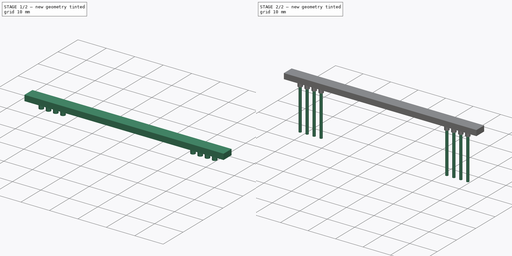
[diagram: build sequence overview — one tinted view per stage of 2, left to right]
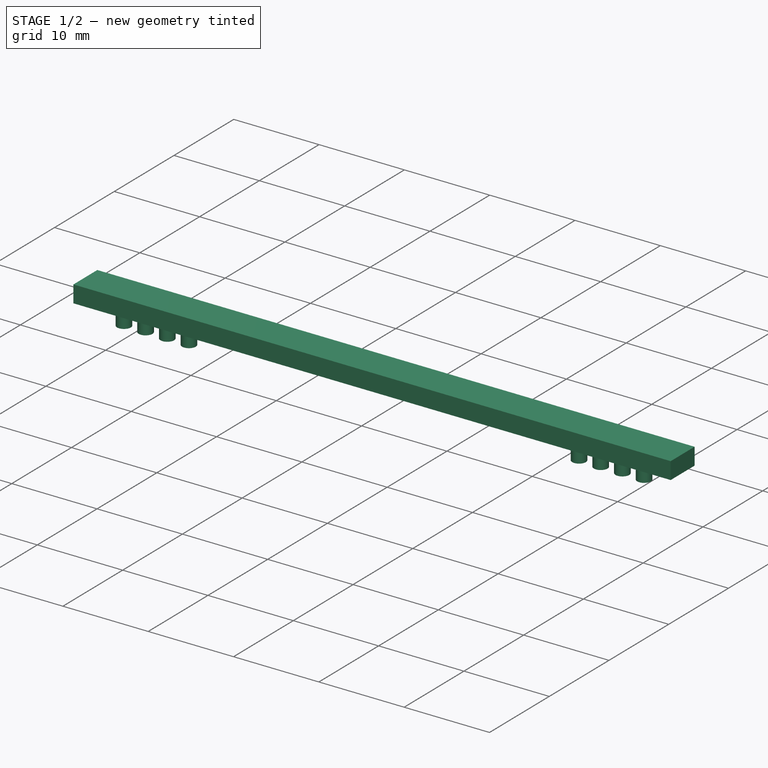
[diagram: stage 1 of 2 — iso view after this stage's code; geometry added in this stage tinted green]
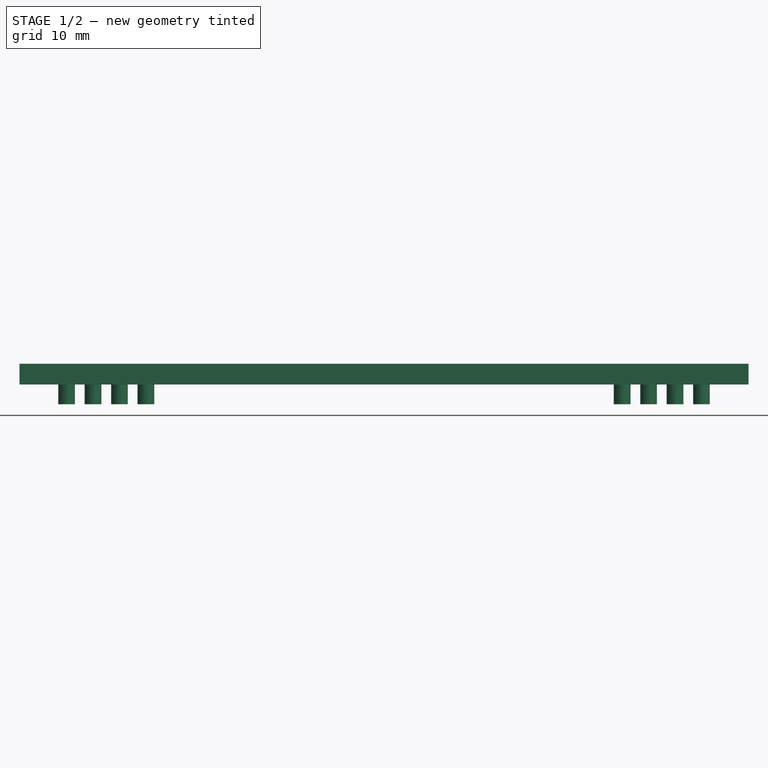
[diagram: stage 1 of 2 — front view after this stage's code; geometry added in this stage tinted green]
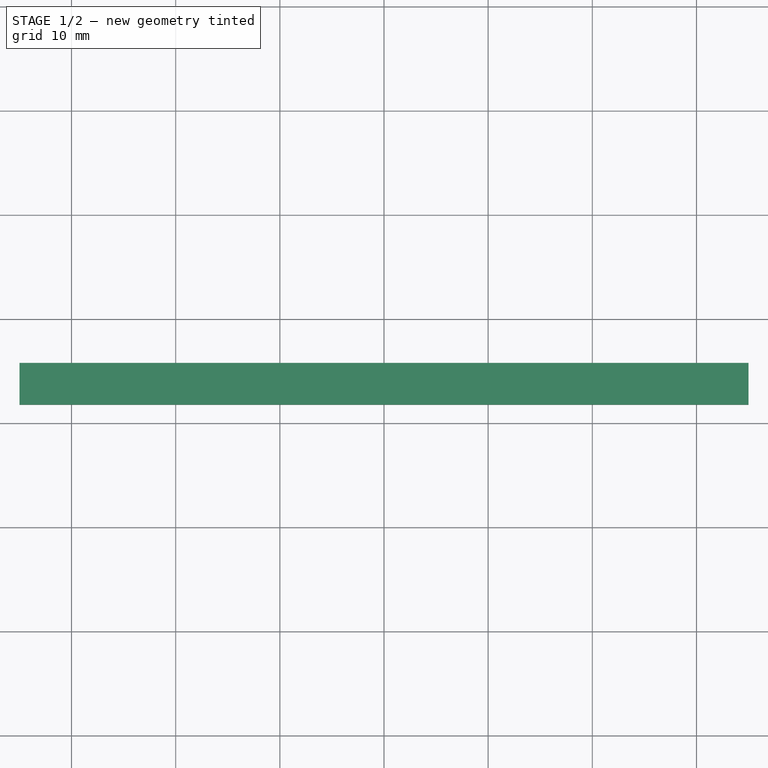
[diagram: stage 1 of 2 — top view after this stage's code; geometry added in this stage tinted green]
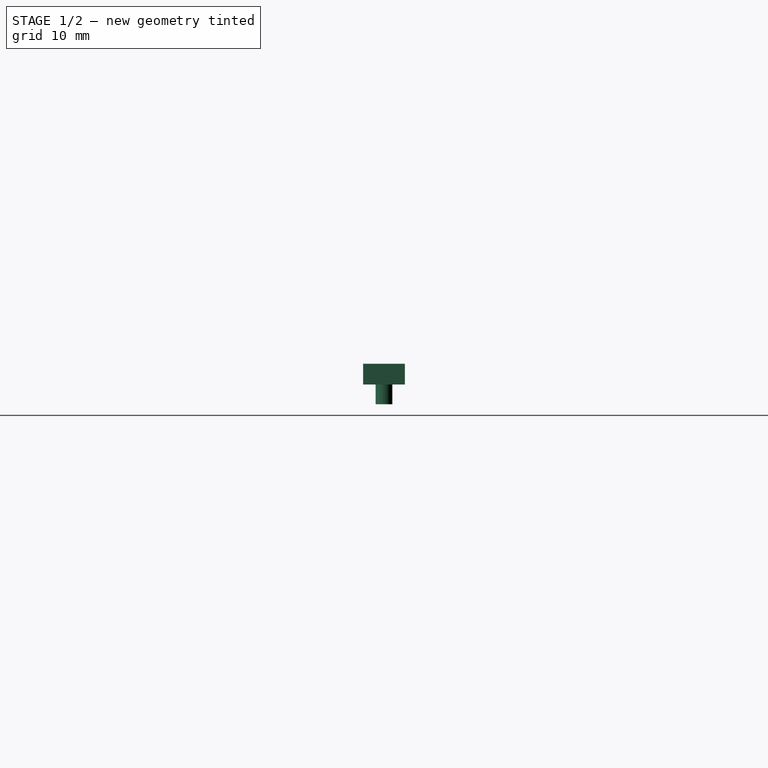
[diagram: stage 1 of 2 — right view after this stage's code; geometry added in this stage tinted green]
FCSTD DOCUMENT  (FreeCAD 0.18R15969 (Git))
Label: feature_pogo_hole
License: All rights reserved
LicenseURL: http://en.wikipedia.org/wiki/All_rights_reserved
objects: Sketcher::SketchObject×3, PartDesign::Pad×3, PartDesign::Chamfer×1, PartDesign::Body×1
note: 11 computed .brp shape members not serialized (recipe doc carries the construction recipe); baked Part::Feature solids carry a one-line shape summary decoded from their .brp

FEATURE [Sketcher::SketchObject] Sketch
  MapMode = 5
  Support = -> [XY_Plane]
  sketch-geometry (7):
    g0: LineSegment StartX=-35 StartY=-4.25 StartZ=0 EndX=35 EndY=-4.25 EndZ=0
    g1: LineSegment StartX=35 StartY=-4.25 StartZ=0 EndX=35 EndY=-8.25 EndZ=0
    g2: LineSegment StartX=35 StartY=-8.25 StartZ=0 EndX=-35 EndY=-8.25 EndZ=0
    g3: LineSegment StartX=-35 StartY=-8.25 StartZ=0 EndX=-35 EndY=-4.25 EndZ=0
    g4: LineSegment [constr] StartX=-35 StartY=-4.25 StartZ=0 EndX=0 EndY=-6.25 EndZ=0
    g5: LineSegment [constr] StartX=0 StartY=-6.25 StartZ=0 EndX=35 EndY=-4.25 EndZ=0
    g6: LineSegment [constr] StartX=0 StartY=-6.25 StartZ=0 EndX=-35 EndY=-8.25 EndZ=0
  constraints (19):
    c: Coincident(g0,g1)
    c: Coincident(g1,g2)
    c: Coincident(g2,g3)
    c: Coincident(g3,g0)
    c: Horizontal(g0)
    c: Horizontal(g2)
    c: Vertical(g1)
    c: Vertical(g3)
    c: Coincident(g0,g4)
    c: PointOnObject(g4,g-2)
    c: Coincident(g4,g5)
    c: Coincident(g5,g0)
    c: Coincident(g4,g6)
    c: Coincident(g6,g2)
    c: Equal(g6,g4)
    c: Equal(g4,g5)
    c: DistanceY(g4,g-1) = 6.25
    c: DistanceX(g0,g0) = 70
    c: DistanceY(g3,g3) = 4
FEATURE [PartDesign::Pad] Pad
  Length = 2
  Length2 = 100
  Profile = -> Sketch
  Type = 0
FEATURE [Sketcher::SketchObject] Sketch001
  MapMode = 5
  Placement = pos=(0,0,0) rot=(1,0,0;3.14159rad)
  Support = -> [Pad]
  expr: Constraints[37] = 1.5 + 0.1
  sketch-geometry (18):
    g0: Circle CenterX=-30.48 CenterY=6.25 CenterZ=0 NormalX=0 NormalY=0 NormalZ=1 AngleXU=0 Radius=0.8
    g1: LineSegment [constr] StartX=-30.48 StartY=6.25 StartZ=0 EndX=-27.94 EndY=6.25 EndZ=0
    g2: LineSegment [constr] StartX=-27.94 StartY=6.25 StartZ=0 EndX=-25.4 EndY=6.25 EndZ=0
    g3: LineSegment [constr] StartX=-25.4 StartY=6.25 StartZ=0 EndX=-22.86 EndY=6.25 EndZ=0
    g4: LineSegment [constr] StartX=22.86 StartY=6.25 StartZ=0 EndX=25.4 EndY=6.25 EndZ=0
    g5: LineSegment [constr] StartX=25.4 StartY=6.25 StartZ=0 EndX=27.94 EndY=6.25 EndZ=0
    g6: LineSegment [constr] StartX=27.94 StartY=6.25 StartZ=0 EndX=30.48 EndY=6.25 EndZ=0
    g7: LineSegment [constr] StartX=-27.94 StartY=6.25 StartZ=0 EndX=-26.67 EndY=0 EndZ=0
    g8: LineSegment [constr] StartX=-26.67 StartY=0 StartZ=0 EndX=-25.4 EndY=6.25 EndZ=0
    g9: LineSegment [constr] StartX=25.4 StartY=6.25 StartZ=0 EndX=26.67 EndY=0 EndZ=0
    g10: LineSegment [constr] StartX=26.67 StartY=0 StartZ=0 EndX=27.94 EndY=6.25 EndZ=0
    g11: Circle CenterX=-22.86 CenterY=6.25 CenterZ=0 NormalX=0 NormalY=0 NormalZ=1 AngleXU=0 Radius=0.8
    g12: Circle CenterX=-25.4 CenterY=6.25 CenterZ=0 NormalX=0 NormalY=0 NormalZ=1 AngleXU=0 Radius=0.8
    g13: Circle CenterX=-27.94 CenterY=6.25 CenterZ=0 NormalX=0 NormalY=0 NormalZ=1 AngleXU=0 Radius=0.8
    g14: Circle CenterX=22.86 CenterY=6.25 CenterZ=0 NormalX=0 NormalY=0 NormalZ=1 AngleXU=0 Radius=0.8
    g15: Circle CenterX=25.4 CenterY=6.25 CenterZ=0 NormalX=0 NormalY=0 NormalZ=1 AngleXU=0 Radius=0.8
    g16: Circle CenterX=27.94 CenterY=6.25 CenterZ=0 NormalX=0 NormalY=0 NormalZ=1 AngleXU=0 Radius=0.8
    g17: Circle CenterX=30.48 CenterY=6.25 CenterZ=0 NormalX=0 NormalY=0 NormalZ=1 AngleXU=0 Radius=0.8
  constraints (40):
    c: Coincident(g1,g0)
    c: Horizontal(g1)
    c: Coincident(g1,g2)
    c: Coincident(g2,g3)
    c: Horizontal(g3)
    c: Coincident(g4,g5)
    c: Horizontal(g5)
    c: Coincident(g5,g6)
    c: Horizontal(g6)
    c: Coincident(g1,g7)
    c: PointOnObject(g7,g-1)
    c: Coincident(g7,g8)
    c: Coincident(g8,g2)
    c: Coincident(g4,g9)
    c: PointOnObject(g9,g-1)
    c: Coincident(g9,g10)
    c: Coincident(g10,g5)
    c: Equal(g9,g10)
    c: Equal(g10,g8)
    c: Equal(g8,g7)
    c: Horizontal(g4)
    c: Horizontal(g2)
    c: Equal(g3,g2)
    c: Equal(g2,g1)
    c: Equal(g1,g4)
    c: Equal(g4,g5)
    c: Equal(g5,g6)
    c: DistanceX(g6,g6) = 2.54
    c: DistanceX(g-1,g9) = 26.67
    c: DistanceY(g-1,g6) = 6.25
    c: Coincident(g11,g3)
    c: Coincident(g12,g2)
    c: Coincident(g13,g1)
    c: Coincident(g14,g4)
    c: Coincident(g15,g4)
    c: Coincident(g16,g5)
    c: Coincident(g17,g6)
    c: Diameter(g0) = 1.6
    c: Equal(g0, g11-g17) x7
    c: DistanceX(g7,g-1) = 26.67
FEATURE [PartDesign::Pad] Pad001
  BaseFeature = -> Pad
  Length = 1.9
  Length2 = 100
  Profile = -> Sketch001
  Type = 0
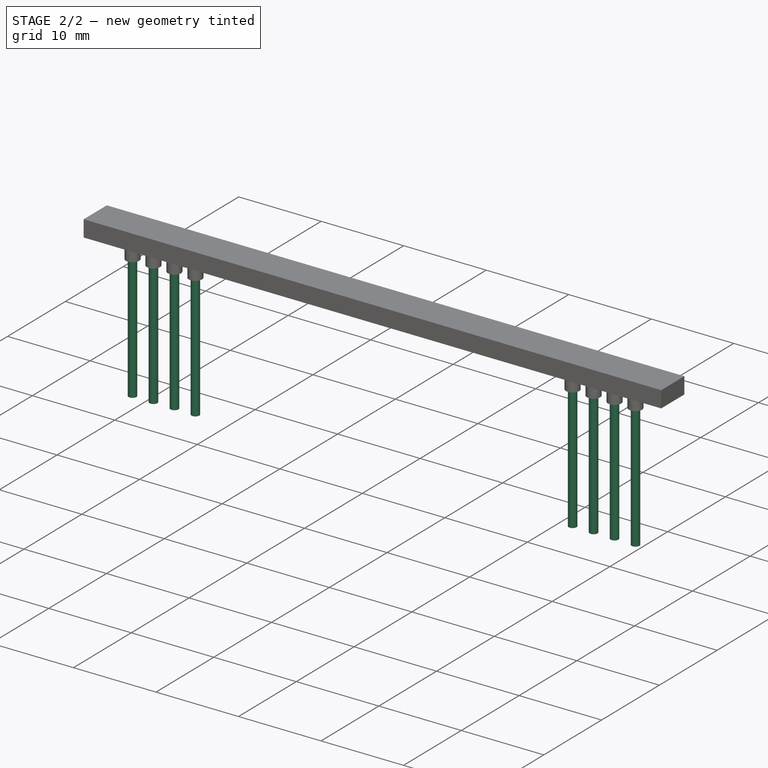
[diagram: stage 2 of 2 — iso view after this stage's code; geometry added in this stage tinted green]
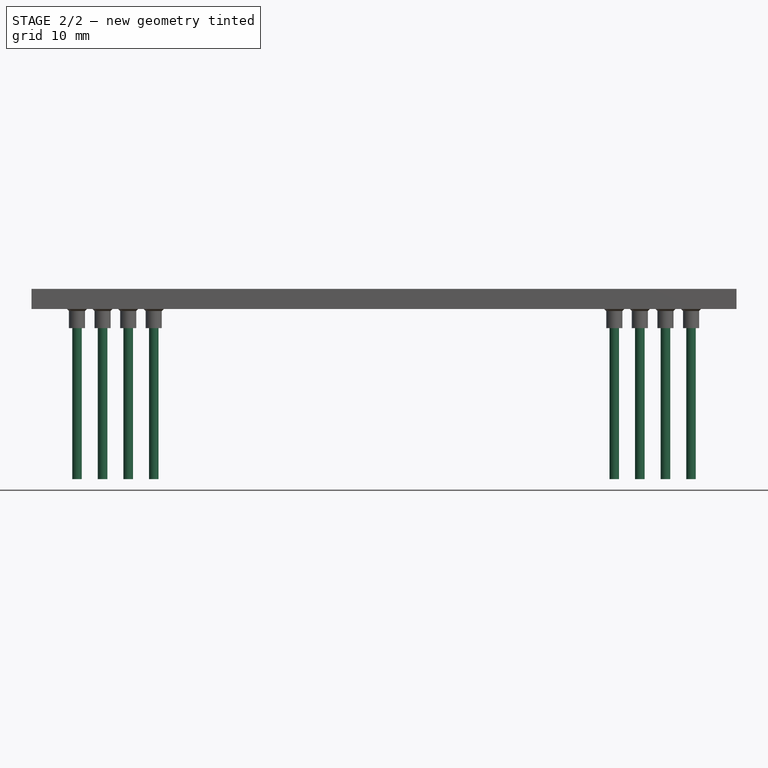
[diagram: stage 2 of 2 — front view after this stage's code; geometry added in this stage tinted green]
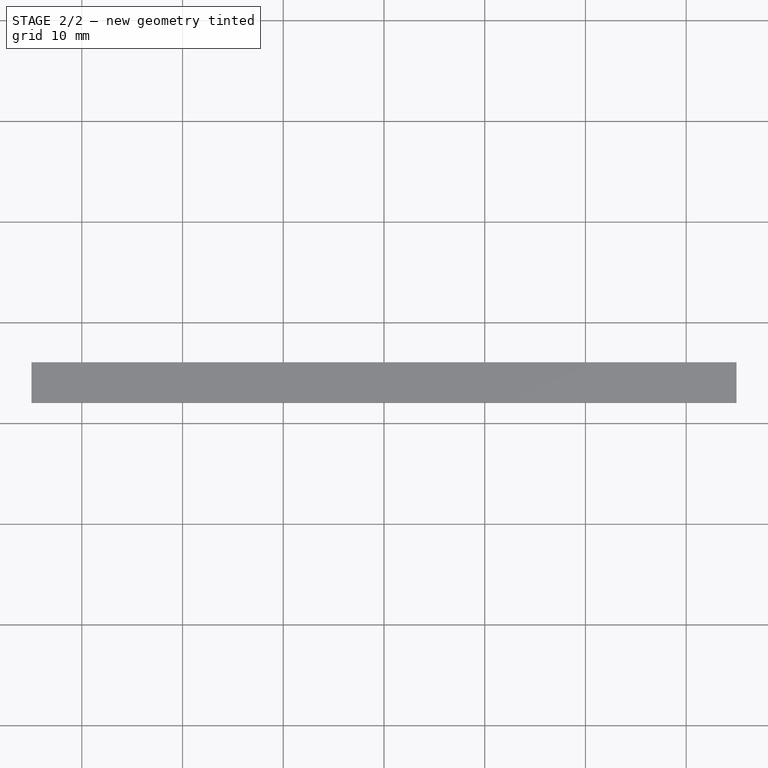
[diagram: stage 2 of 2 — top view after this stage's code; geometry added in this stage tinted green]
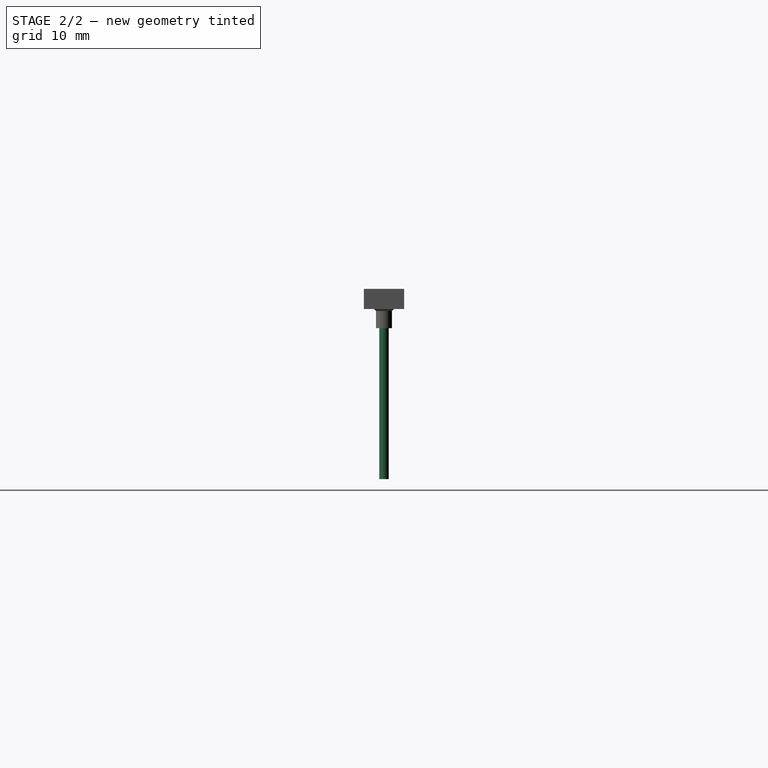
[diagram: stage 2 of 2 — right view after this stage's code; geometry added in this stage tinted green]
FEATURE [Sketcher::SketchObject] Sketch002
  ExternalGeometry = -> [Pad001]
  MapMode = 5
  Placement = pos=(0,0,-1.9) rot=(1,0,0;3.14159rad)
  Support = -> [Pad001]
  sketch-geometry (8):
    g0: Circle CenterX=-30.48 CenterY=6.25 CenterZ=0 NormalX=0 NormalY=0 NormalZ=1 AngleXU=0 Radius=0.475
    g1: Circle CenterX=-27.94 CenterY=6.25 CenterZ=0 NormalX=0 NormalY=0 NormalZ=1 AngleXU=0 Radius=0.475
    g2: Circle CenterX=-25.4 CenterY=6.25 CenterZ=0 NormalX=0 NormalY=0 NormalZ=1 AngleXU=0 Radius=0.475
    g3: Circle CenterX=-22.86 CenterY=6.25 CenterZ=0 NormalX=0 NormalY=0 NormalZ=1 AngleXU=0 Radius=0.475
    g4: Circle CenterX=22.86 CenterY=6.25 CenterZ=0 NormalX=0 NormalY=0 NormalZ=1 AngleXU=0 Radius=0.475
    g5: Circle CenterX=27.94 CenterY=6.25 CenterZ=0 NormalX=0 NormalY=0 NormalZ=1 AngleXU=0 Radius=0.475
    g6: Circle CenterX=25.4 CenterY=6.25 CenterZ=0 NormalX=0 NormalY=0 NormalZ=1 AngleXU=0 Radius=0.475
    g7: Circle CenterX=30.48 CenterY=6.25 CenterZ=0 NormalX=0 NormalY=0 NormalZ=1 AngleXU=0 Radius=0.475
  constraints (16):
    c: Coincident(g0,g-3)
    c: Coincident(g1,g-4)
    c: Coincident(g2,g-5)
    c: Coincident(g3,g-6)
    c: Coincident(g4,g-7)
    c: Coincident(g5,g-8)
    c: Coincident(g6,g-9)
    c: Coincident(g7,g-10)
    c: Equal(g7,g6)
    c: Equal(g6,g5)
    c: Equal(g5,g4)
    c: Equal(g4,g0)
    c: Equal(g0,g1)
    c: Equal(g1,g3)
    c: Equal(g3,g2)
    c: Diameter(g0) = 0.95
FEATURE [PartDesign::Pad] Pad002
  BaseFeature = -> Pad001
  Length = 15
  Length2 = 100
  Profile = -> Sketch002
  Type = 0
FEATURE [PartDesign::Chamfer] Chamfer
  Base = -> Pad002 [Edge14,Edge13,Edge12,Edge19,Edge18,Edge16,Edge17,Edge15]
  BaseFeature = -> Pad002
  Size = 0.2
FEATURE [PartDesign::Body] Body  label="feature_pogo_hole"
  Group = -> [Sketch,Pad,Sketch001,Pad001,Sketch002,Pad002,Chamfer]
  Origin = -> Origin
  Tip = -> Chamfer
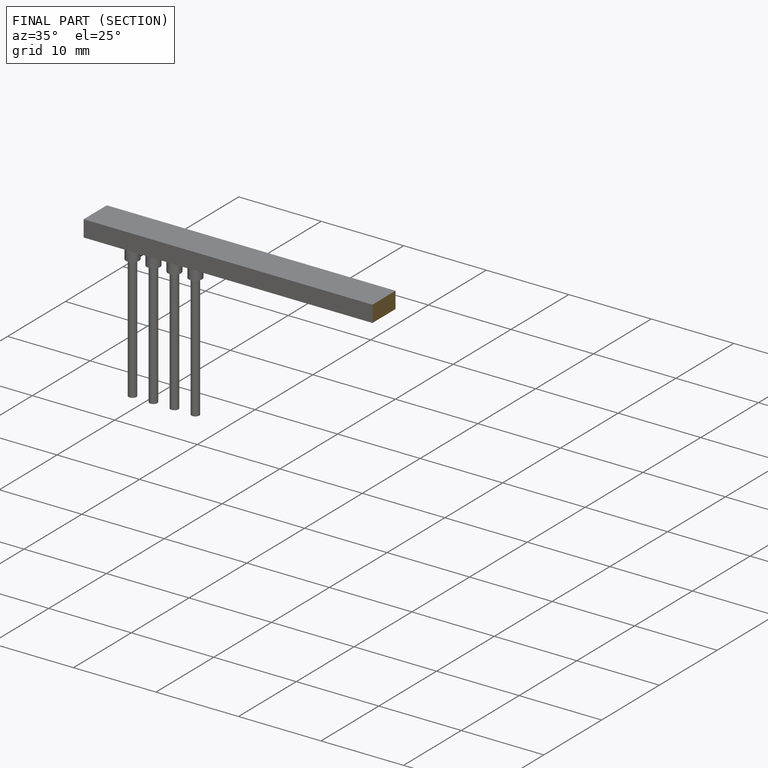
[diagram: finished part — half-section view (interior)]
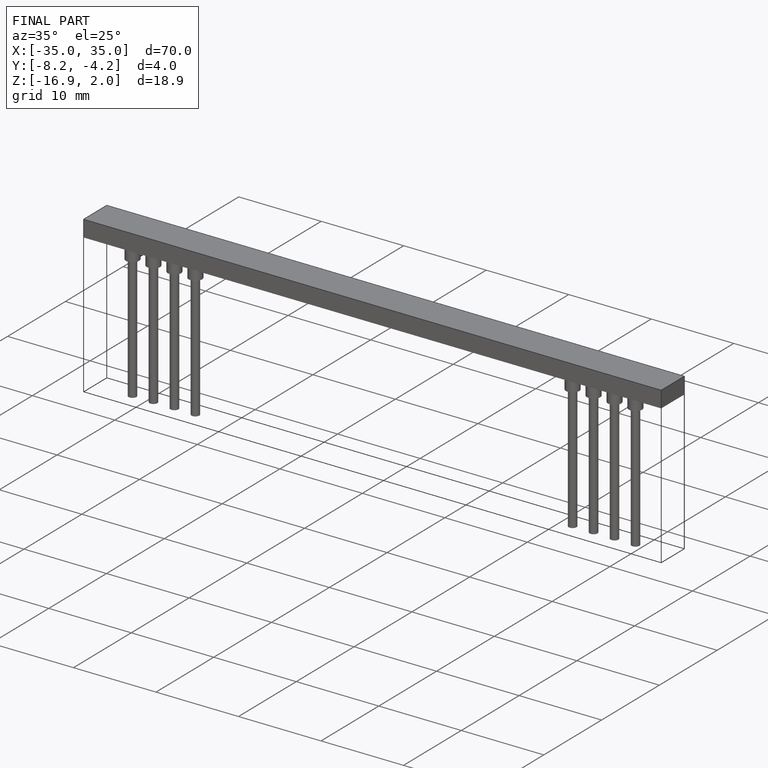
[diagram: finished part — iso view with bounding-box wireframe]
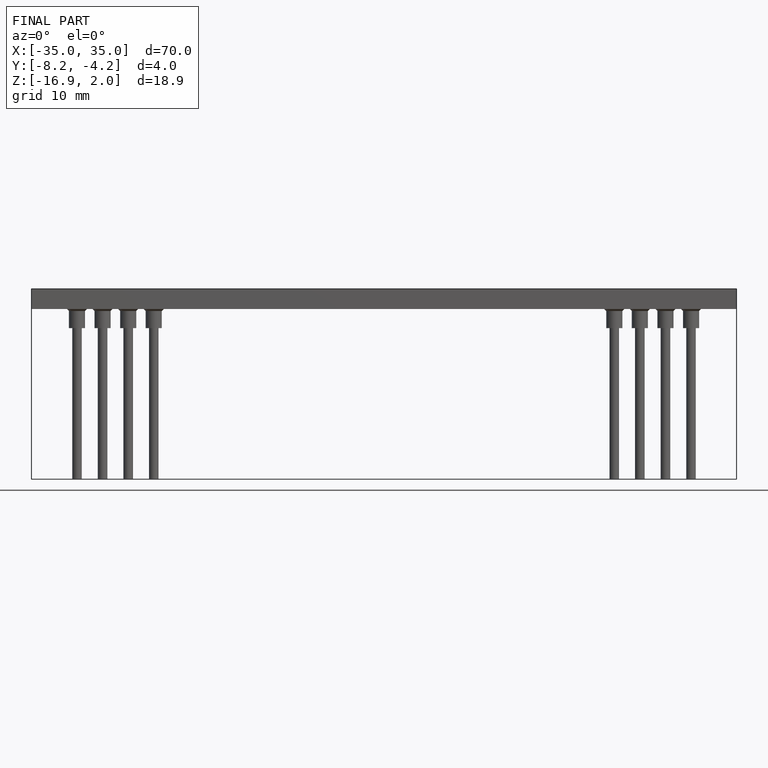
[diagram: finished part — front view with bounding-box wireframe]
